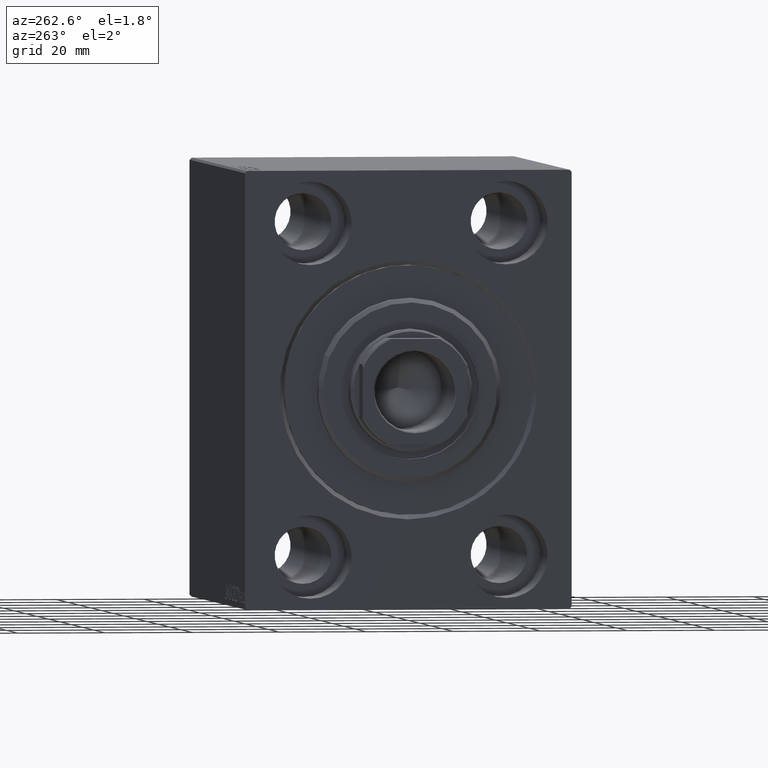
[diagram: clean part render]
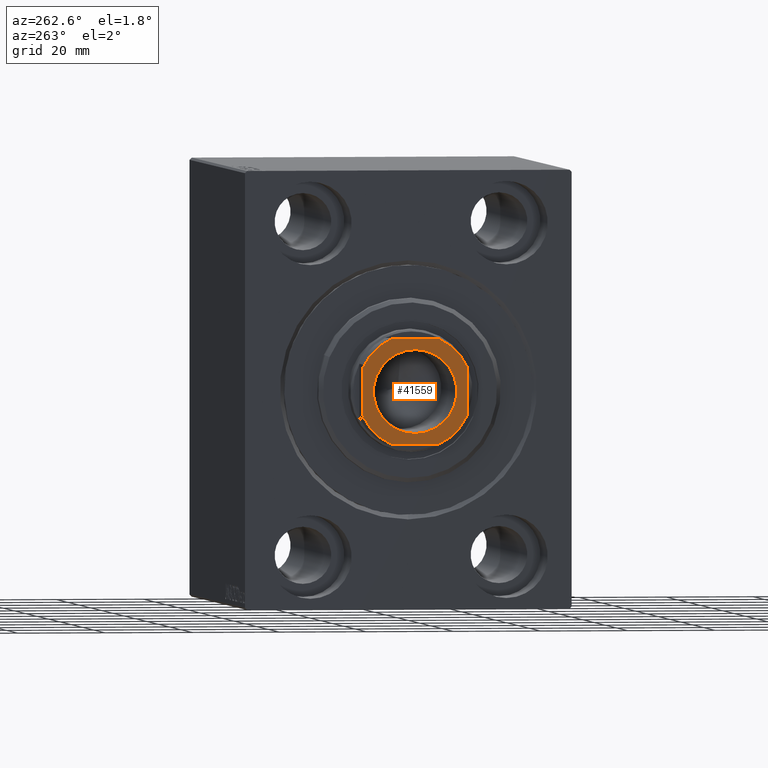
[diagram: same view with one face highlighted and labeled with its STEP entity id]
A machine part, auxiliary view. The second image highlights one B-rep face of the part: STEP entity #41559.
In plain terms, the highlighted planar face has unit normal (-1, 0, 0).
Its self-contained STEP definition (entity closure, byte-faithful):
#428 = DIRECTION ( 'NONE',  ( 0.000000000000000000, -0.000000000000000000, -1.000000000000000000 ) ) ;
#1108 = DIRECTION ( 'NONE',  ( -0.000000000000000000, 0.000000000000000000, 1.000000000000000000 ) ) ;
#1495 = VERTEX_POINT ( 'NONE', #38429 ) ;
#1909 = CARTESIAN_POINT ( 'NONE',  ( 0.000000000000000000, 0.000000000000000000, 96.00000000000000000 ) ) ;
#2987 = AXIS2_PLACEMENT_3D ( 'NONE', #31368, #1108, #7527 ) ;
#3052 = DIRECTION ( 'NONE',  ( -0.000000000000000000, 0.000000000000000000, 1.000000000000000000 ) ) ;
#3254 = AXIS2_PLACEMENT_3D ( 'NONE', #13694, #428, #27161 ) ;
#3708 = CARTESIAN_POINT ( 'NONE',  ( 0.000000000000000000, 0.000000000000000000, 96.00000000000000000 ) ) ;
#4608 = VERTEX_POINT ( 'NONE', #20064 ) ;
#4697 = EDGE_CURVE ( 'NONE', #18520, #18663, #25707, .T. ) ;
#4706 = CARTESIAN_POINT ( 'NONE',  ( -12.00000000000000000, -5.499090833947057888, 96.00000000000000000 ) ) ;
#5884 = ORIENTED_EDGE ( 'NONE', *, *, #8120, .T. ) ;
#6247 = DIRECTION ( 'NONE',  ( 1.000000000000000000, 0.000000000000000000, 0.000000000000000000 ) ) ;
#7348 = LINE ( 'NONE', #13537, #7581 ) ;
#7397 = EDGE_LOOP ( 'NONE', ( #35665, #32810, #23347, #7969, #43475, #5884, #14524, #20899 ) ) ;
#7527 = DIRECTION ( 'NONE',  ( 1.000000000000000000, 0.000000000000000000, 0.000000000000000000 ) ) ;
#7581 = VECTOR ( 'NONE', #20813, 1000.000000000000000 ) ;
#7656 = DIRECTION ( 'NONE',  ( 1.000000000000000000, 0.000000000000000000, 0.000000000000000000 ) ) ;
#7969 = ORIENTED_EDGE ( 'NONE', *, *, #27243, .T. ) ;
#8120 = EDGE_CURVE ( 'NONE', #9010, #43169, #22716, .T. ) ;
#8437 = CARTESIAN_POINT ( 'NONE',  ( 9.549999999999988276, 0.000000000000000000, 96.00000000000000000 ) ) ;
#9010 = VERTEX_POINT ( 'NONE', #4706 ) ;
#9724 = VERTEX_POINT ( 'NONE', #40738 ) ;
#10030 = LINE ( 'NONE', #36985, #33359 ) ;
#10460 = CARTESIAN_POINT ( 'NONE',  ( 11.99999999999999645, 5.499090833947039236, 96.00000000000000000 ) ) ;
#10836 = CIRCLE ( 'NONE', #14358, 9.549999999999988276 ) ;
#11332 = DIRECTION ( 'NONE',  ( 1.000000000000000000, 0.000000000000000000, 0.000000000000000000 ) ) ;
#11807 = VECTOR ( 'NONE', #13870, 1000.000000000000000 ) ;
#13305 = DIRECTION ( 'NONE',  ( -0.000000000000000000, 0.000000000000000000, 1.000000000000000000 ) ) ;
#13537 = CARTESIAN_POINT ( 'NONE',  ( -12.00000000000000355, 11.99999999999999645, 96.00000000000000000 ) ) ;
#13694 = CARTESIAN_POINT ( 'NONE',  ( 0.000000000000000000, 0.000000000000000000, 96.00000000000000000 ) ) ;
#13870 = DIRECTION ( 'NONE',  ( -2.168404344971008868E-16, 1.000000000000000000, -0.000000000000000000 ) ) ;
#14003 = EDGE_CURVE ( 'NONE', #34320, #24629, #10836, .T. ) ;
#14110 = CIRCLE ( 'NONE', #27503, 13.20000000000002238 ) ;
#14358 = AXIS2_PLACEMENT_3D ( 'NONE', #1909, #35929, #38587 ) ;
#14524 = ORIENTED_EDGE ( 'NONE', *, *, #35131, .T. ) ;
#14638 = DIRECTION ( 'NONE',  ( -0.000000000000000000, 0.000000000000000000, 1.000000000000000000 ) ) ;
#16524 = DIRECTION ( 'NONE',  ( 1.000000000000000000, 0.000000000000000000, 0.000000000000000000 ) ) ;
#16531 = CARTESIAN_POINT ( 'NONE',  ( 11.99999999999999645, 11.99999999999999645, 96.00000000000000000 ) ) ;
#17882 = VECTOR ( 'NONE', #21510, 1000.000000000000000 ) ;
#18520 = VERTEX_POINT ( 'NONE', #10460 ) ;
#18663 = VERTEX_POINT ( 'NONE', #33665 ) ;
#18691 = EDGE_CURVE ( 'NONE', #33625, #9010, #7348, .T. ) ;
#19159 = EDGE_CURVE ( 'NONE', #4608, #18520, #40162, .T. ) ;
#20064 = CARTESIAN_POINT ( 'NONE',  ( 12.00000000000000000, -5.499090833947034795, 96.00000000000000000 ) ) ;
#20813 = DIRECTION ( 'NONE',  ( 2.168404344971008868E-16, -1.000000000000000000, 0.000000000000000000 ) ) ;
#20899 = ORIENTED_EDGE ( 'NONE', *, *, #29650, .T. ) ;
#21510 = DIRECTION ( 'NONE',  ( 1.000000000000000000, 0.000000000000000000, 0.000000000000000000 ) ) ;
#21749 = CARTESIAN_POINT ( 'NONE',  ( -9.549999999999988276, 1.169537693185720980E-15, 96.00000000000000000 ) ) ;
#22273 = CIRCLE ( 'NONE', #3254, 9.549999999999988276 ) ;
#22599 = EDGE_LOOP ( 'NONE', ( #35239, #39263 ) ) ;
#22716 = CIRCLE ( 'NONE', #2987, 13.20000000000002238 ) ;
#23347 = ORIENTED_EDGE ( 'NONE', *, *, #33564, .T. ) ;
#24629 = VERTEX_POINT ( 'NONE', #8437 ) ;
#24750 = AXIS2_PLACEMENT_3D ( 'NONE', #34396, #35041, #7656 ) ;
#24820 = CARTESIAN_POINT ( 'NONE',  ( -11.99999999999999822, -12.00000000000000355, 96.00000000000000000 ) ) ;
#25707 = CIRCLE ( 'NONE', #30283, 13.20000000000000995 ) ;
#27161 = DIRECTION ( 'NONE',  ( 1.000000000000000000, 0.000000000000000000, 0.000000000000000000 ) ) ;
#27243 = EDGE_CURVE ( 'NONE', #1495, #33625, #14110, .T. ) ;
#27503 = AXIS2_PLACEMENT_3D ( 'NONE', #31638, #14638, #11332 ) ;
#29472 = DIRECTION ( 'NONE',  ( -1.000000000000000000, -0.000000000000000000, -0.000000000000000000 ) ) ;
#29650 = EDGE_CURVE ( 'NONE', #9724, #4608, #31101, .T. ) ;
#29651 = PLANE ( 'NONE',  #39944 ) ;
#29870 = FACE_OUTER_BOUND ( 'NONE', #7397, .T. ) ;
#30283 = AXIS2_PLACEMENT_3D ( 'NONE', #3708, #3052, #16524 ) ;
#30670 = CARTESIAN_POINT ( 'NONE',  ( -5.499090833947052559, -12.00000000000000355, 96.00000000000000000 ) ) ;
#31101 = CIRCLE ( 'NONE', #24750, 13.20000000000000995 ) ;
#31368 = CARTESIAN_POINT ( 'NONE',  ( 0.000000000000000000, 0.000000000000000000, 96.00000000000000000 ) ) ;
#31638 = CARTESIAN_POINT ( 'NONE',  ( 0.000000000000000000, 0.000000000000000000, 96.00000000000000000 ) ) ;
#31666 = LINE ( 'NONE', #24820, #17882 ) ;
#32810 = ORIENTED_EDGE ( 'NONE', *, *, #4697, .T. ) ;
#33359 = VECTOR ( 'NONE', #29472, 1000.000000000000000 ) ;
#33564 = EDGE_CURVE ( 'NONE', #18663, #1495, #10030, .T. ) ;
#33625 = VERTEX_POINT ( 'NONE', #37839 ) ;
#33665 = CARTESIAN_POINT ( 'NONE',  ( 5.499090833947041901, 11.99999999999999645, 96.00000000000000000 ) ) ;
#34320 = VERTEX_POINT ( 'NONE', #21749 ) ;
#34396 = CARTESIAN_POINT ( 'NONE',  ( 0.000000000000000000, 0.000000000000000000, 96.00000000000000000 ) ) ;
#35041 = DIRECTION ( 'NONE',  ( -0.000000000000000000, 0.000000000000000000, 1.000000000000000000 ) ) ;
#35131 = EDGE_CURVE ( 'NONE', #43169, #9724, #31666, .T. ) ;
#35239 = ORIENTED_EDGE ( 'NONE', *, *, #41948, .T. ) ;
#35665 = ORIENTED_EDGE ( 'NONE', *, *, #19159, .T. ) ;
#35929 = DIRECTION ( 'NONE',  ( 0.000000000000000000, -0.000000000000000000, -1.000000000000000000 ) ) ;
#36063 = FACE_BOUND ( 'NONE', #22599, .T. ) ;
#36985 = CARTESIAN_POINT ( 'NONE',  ( -12.00000000000000355, 11.99999999999999645, 96.00000000000000000 ) ) ;
#37839 = CARTESIAN_POINT ( 'NONE',  ( -12.00000000000000178, 5.499090833947057000, 96.00000000000000000 ) ) ;
#38429 = CARTESIAN_POINT ( 'NONE',  ( -5.499090833947067658, 11.99999999999999645, 96.00000000000000000 ) ) ;
#38587 = DIRECTION ( 'NONE',  ( 1.000000000000000000, 0.000000000000000000, 0.000000000000000000 ) ) ;
#39263 = ORIENTED_EDGE ( 'NONE', *, *, #14003, .T. ) ;
#39944 = AXIS2_PLACEMENT_3D ( 'NONE', #43541, #13305, #6247 ) ;
#40162 = LINE ( 'NONE', #16531, #11807 ) ;
#40738 = CARTESIAN_POINT ( 'NONE',  ( 5.499090833947025914, -12.00000000000000355, 96.00000000000000000 ) ) ;
#41559 = ADVANCED_FACE ( 'NONE', ( #36063, #29870 ), #29651, .T. ) ;
#41948 = EDGE_CURVE ( 'NONE', #24629, #34320, #22273, .T. ) ;
#43169 = VERTEX_POINT ( 'NONE', #30670 ) ;
#43475 = ORIENTED_EDGE ( 'NONE', *, *, #18691, .T. ) ;
#43541 = CARTESIAN_POINT ( 'NONE',  ( 0.000000000000000000, 0.000000000000000000, 96.00000000000000000 ) ) ;